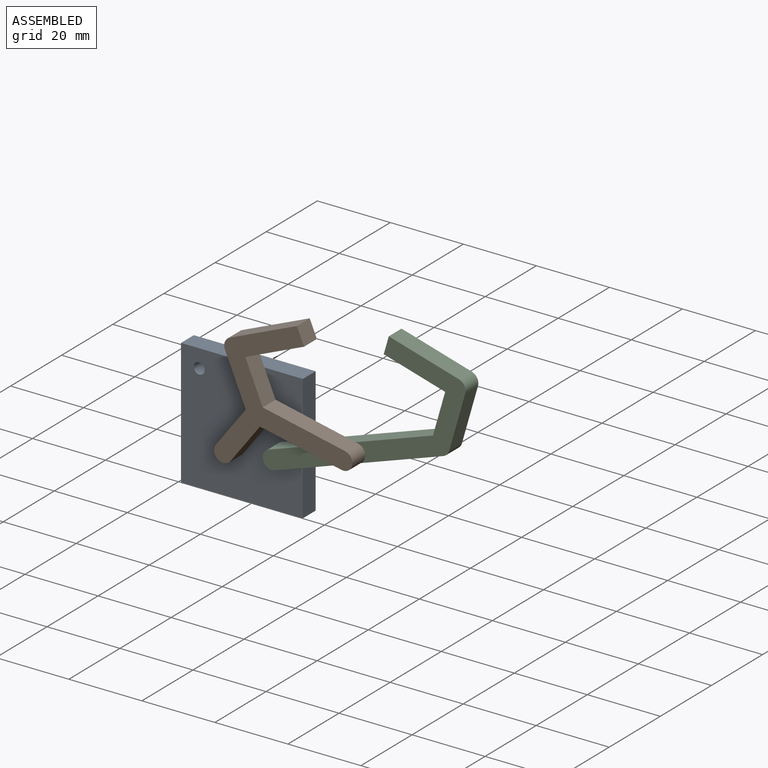
[diagram: assembled view]
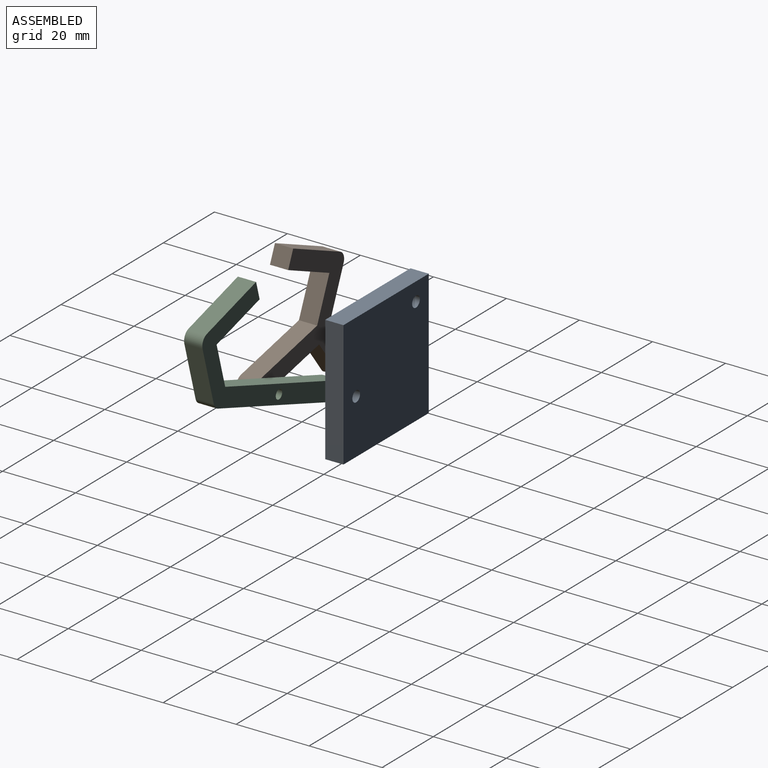
[diagram: assembled view, second angle]
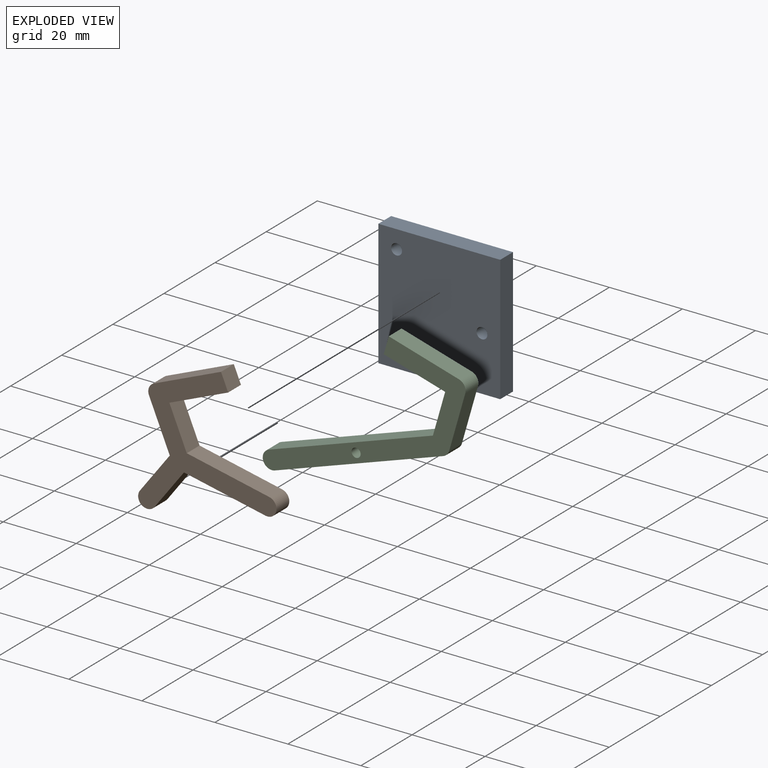
[diagram: exploded view]
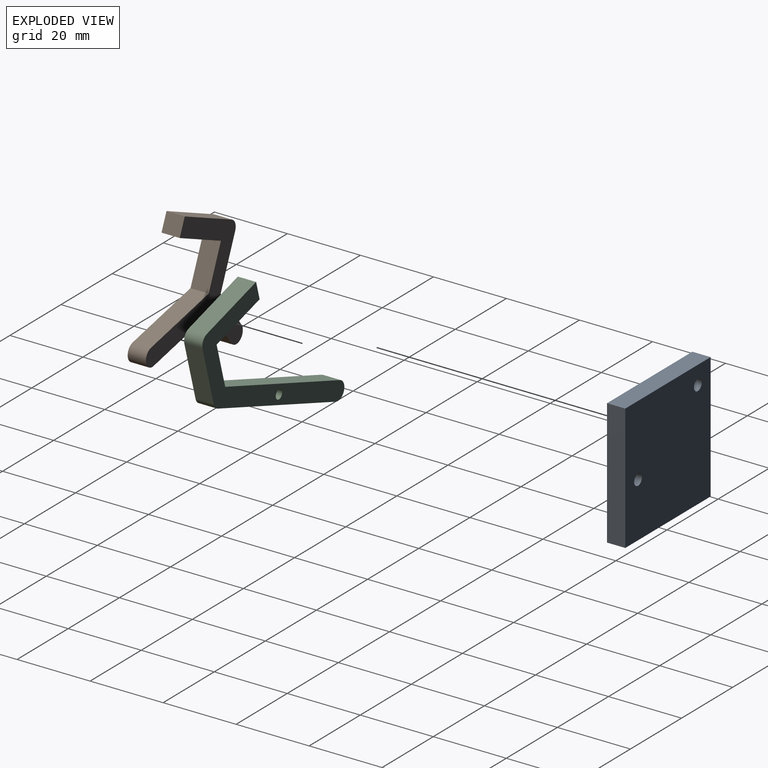
[diagram: exploded view, second angle]
ASSEMBLY  parts=3 mates=2
PART A: 8 faces, bbox 33.4x5x34.5 mm
  f0: plane 34.51x5mm, normal (-1,0,0), area 172.5mm2, adj f1,f5,f6,f7
  f1: plane 33.38x5mm, normal (0,0,-1), area 166.9mm2, adj f0,f2,f6,f7
  f2: plane 34.51x5mm, normal (1,0,0), area 172.5mm2, adj f1,f5,f6,f7
  f3: cylinder r=1.5mm len=5mm, axis (0,1,0), area 47.1mm2, adj f6,f7
  f4: cylinder r=1.5mm len=5mm, axis (0,1,0), area 47.1mm2, adj f6,f7
  f5: plane 33.38x5mm, normal (0,0,1), area 166.9mm2, adj f0,f2,f6,f7
  f6: plane 34.51x33.38mm, normal (0,-1,0), area 1137.8mm2, adj f0,f1,f2,f3,f4,f5
  f7: plane 34.51x33.38mm, normal (0,1,0), area 1137.8mm2, adj f0,f1,f2,f3,f4,f5
PART B: 14 faces, bbox 38x5x35 mm
  f0: plane 5x5mm, normal (1,0,0), area 25mm2, adj f1,f11,f12,f13
  f1: plane 20x5mm, normal (0,0,1), area 100mm2, adj f0,f2,f12,f13
  f2: cylinder r=2.5mm len=5mm, axis (0,1,0), area 19.6mm2, adj f1,f3,f12,f13
  f3: plane 14.55x5mm, normal (-1,0,0), area 72.8mm2, adj f2,f4,f12,f13
  f4: plane 11.74x6.78mm, normal (-0.5,0,0.87), area 67.8mm2, adj f3,f5,f12,f13
  f5: cylinder r=2.5mm len=5mm, axis (0,1,0), area 39.3mm2, adj f4,f6,f12,f13
  f6: plane 11.61x6.7mm, normal (0.5,0,-0.87), area 67mm2, adj f5,f7,f12,f13
  f7: plane 18.7x13.09mm, normal (-0.57,0,-0.82), area 114.1mm2, adj f6,f8,f12,f13
  f8: cylinder r=2.5mm len=5mm, axis (0,1,0), area 39.3mm2, adj f7,f9,f12,f13
  f9: plane 18.93x13.26mm, normal (0.57,0,0.82), area 115.6mm2, adj f8,f10,f12,f13
  f10: plane 12.19x5mm, normal (1,0,0), area 61mm2, adj f9,f11,f12,f13
  f11: plane 17.5x5mm, normal (0,0,-1), area 87.5mm2, adj f0,f10,f12,f13
  f12: plane 37.99x35mm, normal (0,-1,0), area 384.5mm2, adj f0,f1,f2,f3,f4,f5,f6,f7
  f13: plane 37.99x35mm, normal (0,1,0), area 384.5mm2, adj f0,f1,f2,f3,f4,f5,f6,f7
PART C: 13 faces, bbox 45x5x49 mm
  f0: plane 5x5mm, normal (-1,0,0), area 25mm2, adj f1,f9,f11,f12
  f1: plane 17.5x5mm, normal (0,0,-1), area 87.5mm2, adj f0,f2,f11,f12
  f2: plane 12.19x5mm, normal (-1,0,0), area 61mm2, adj f1,f3,f11,f12
  f3: plane 38.93x27.26mm, normal (-0.57,0,0.82), area 237.6mm2, adj f2,f4,f11,f12
  f4: cylinder r=2.5mm len=5mm, axis (0,1,0), area 39.3mm2, adj f3,f5,f11,f12
  f5: plane 40x28.01mm, normal (0.57,0,-0.82), area 244.2mm2, adj f4,f6,f11,f12
  f6: cylinder r=2.5mm len=5mm, axis (0,1,0), area 12mm2, adj f5,f7,f11,f12
  f7: plane 16x5mm, normal (1,0,0), area 80mm2, adj f6,f8,f11,f12
  f8: cylinder r=2.5mm len=5mm, axis (0,1,0), area 19.6mm2, adj f7,f9,f11,f12
  f9: plane 20x5mm, normal (0,0,1), area 100mm2, adj f0,f8,f11,f12
  f10: cylinder r=1.25mm len=5mm, axis (0,1,0), area 39.3mm2, adj f11,f12
  f11: plane 49x45mm, normal (0,-1,0), area 427.4mm2, adj f0,f1,f2,f3,f4,f5,f6,f7
  f12: plane 49x45mm, normal (0,1,0), area 427.4mm2, adj f0,f1,f2,f3,f4,f5,f6,f7
PLACE A t=(10.85,2.48,-54.56)mm fixed
PLACE B rot(axis=(0,-1,0),23deg) t=(-10.26,-7.52,113.42)mm
PLACE C rot(axis=(0,1,0),16deg) t=(68.26,-2.52,129.2)mm
MATE revolute C.f4 <-> A.f4  axis (0,1,0) through (10.85,-2.52,1.36)mm
MATE revolute B.f8 <-> C.f10  axis (0,1,0) through (33.93,-7.52,9.32)mm
